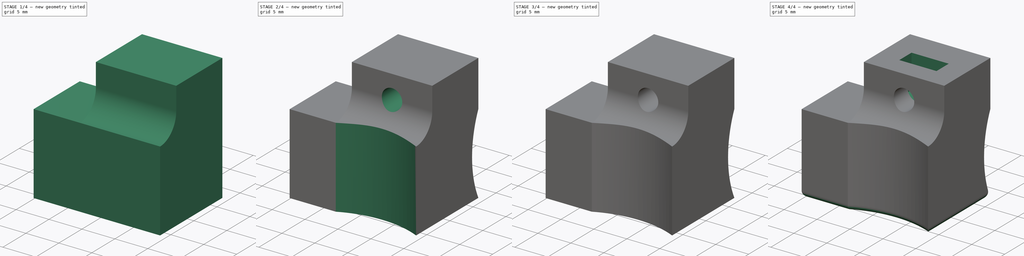
[diagram: build sequence overview — one tinted view per stage of 4, left to right]
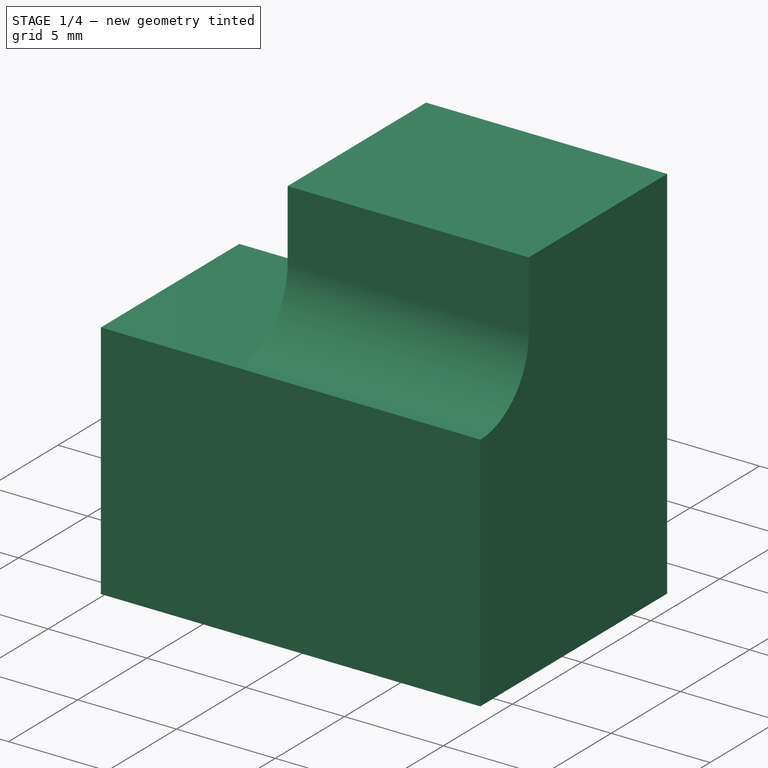
[diagram: stage 1 of 4 — iso view after this stage's code; geometry added in this stage tinted green]
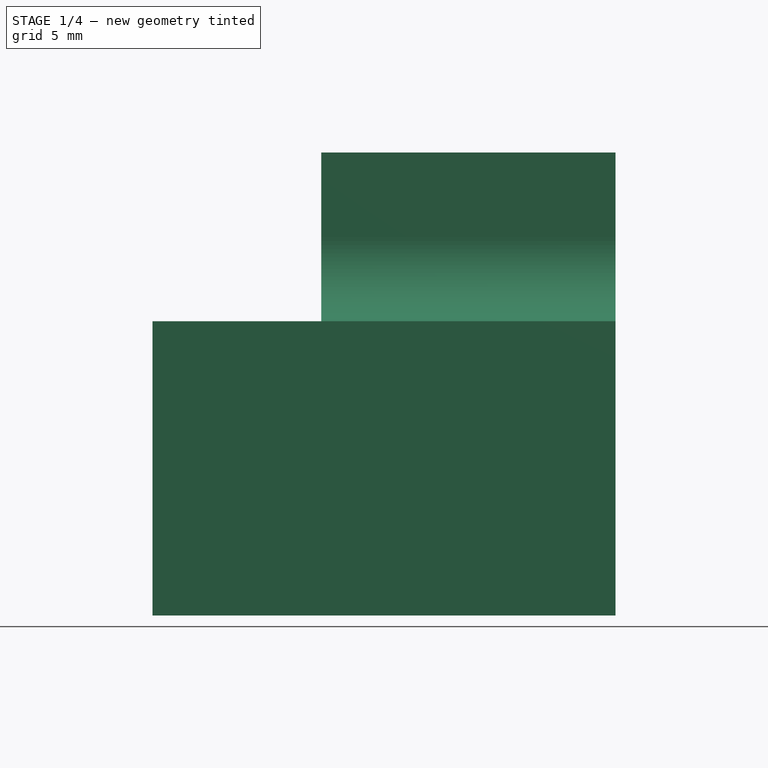
[diagram: stage 1 of 4 — front view after this stage's code; geometry added in this stage tinted green]
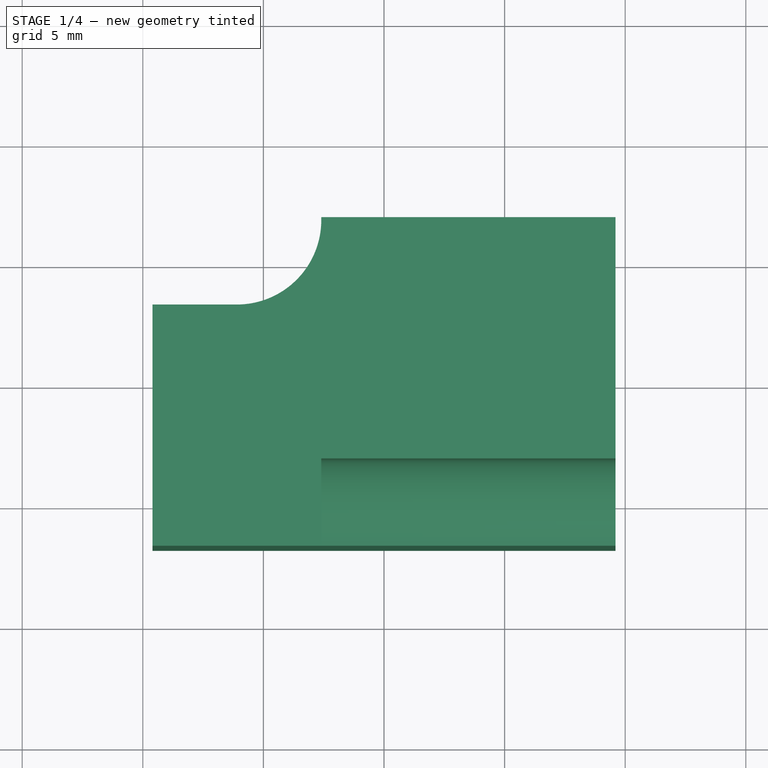
[diagram: stage 1 of 4 — top view after this stage's code; geometry added in this stage tinted green]
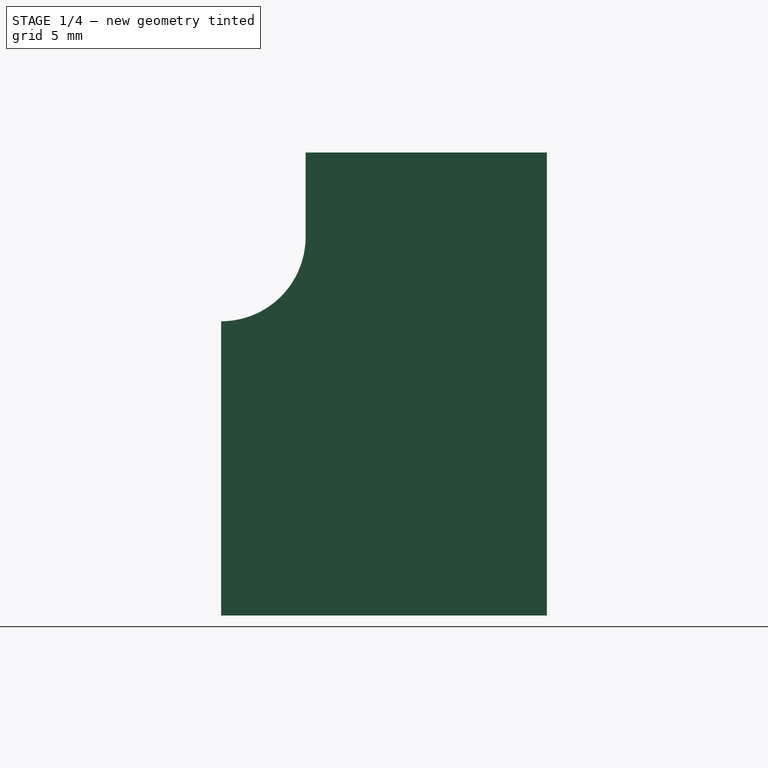
[diagram: stage 1 of 4 — right view after this stage's code; geometry added in this stage tinted green]
FCSTD DOCUMENT  (FreeCAD 0.16RUnknown)
Label: joint-base-s.012
License: All rights reserved
LicenseURL: http://en.wikipedia.org/wiki/All_rights_reserved
objects: Sketcher::SketchObject×9, PartDesign::Pocket×4, Part::Extrusion×3, PartDesign::Pad×2, Part::Cut×2, Part::Fillet×1
note: 27 computed .brp shape members not serialized (recipe doc carries the construction recipe); baked Part::Feature solids carry a one-line shape summary decoded from their .brp

FEATURE [Sketcher::SketchObject] Sketch
  sketch-geometry (10):
    g0: LineSegment StartX=-9.6 StartY=-6.75 StartZ=0 EndX=-9.6 EndY=3.25 EndZ=0
    g1: LineSegment StartX=-2.6 StartY=6.75 StartZ=0 EndX=9.6 EndY=6.75 EndZ=0
    g2: LineSegment StartX=9.6 StartY=6.75 StartZ=0 EndX=9.6 EndY=-6.75 EndZ=0
    g3: LineSegment StartX=9.6 StartY=-6.75 StartZ=0 EndX=-9.6 EndY=-6.75 EndZ=0
    g4: LineSegment [constr] StartX=-2.6 StartY=6.75 StartZ=0 EndX=-6.1 EndY=6.75 EndZ=0
    g5: LineSegment [constr] StartX=-6.1 StartY=6.75 StartZ=0 EndX=-6.1 EndY=3.25 EndZ=0
    g6: LineSegment StartX=-6.1 StartY=3.25 StartZ=0 EndX=-9.6 EndY=3.25 EndZ=0
    g7: ArcOfCircle CenterX=-6.1 CenterY=6.75 CenterZ=0 NormalX=0 NormalY=0 NormalZ=1 Radius=3.5 StartAngle=4.71239 EndAngle=6.28319
    g8: LineSegment [constr] StartX=-9.6 StartY=-6.75 StartZ=0 EndX=0 EndY=0 EndZ=0
    g9: LineSegment [constr] StartX=0 StartY=0 StartZ=0 EndX=9.6 EndY=6.75 EndZ=0
  constraints (27):
    c: Vertical(g0)
    c: Horizontal(g1)
    c: Coincident(g1,g2)
    c: Vertical(g2)
    c: Horizontal(g3)
    c: Coincident(g0,g3)
    c: DistanceX(g1,g1) = 12.2
    c: Horizontal(g4)
    c: Coincident(g4,g5)
    c: Vertical(g5)
    c: Coincident(g5,g6)
    c: Horizontal(g6)
    c: Coincident(g4,g7)
    c: Coincident(g1,g4)
    c: Coincident(g1,g7)
    c: Coincident(g5,g7)
    c: Coincident(g0,g6)
    c: DistanceX(g0,g1) = 7
    c: Equal(g4,g6)
    c: Coincident(g8,g9)
    c: Coincident(g0,g8)
    c: Coincident(g1,g9)
    c: Equal(g8,g9)
    c: Parallel(g8,g9)
    c: Coincident(g8,g-1)
    c: DistanceY(g0,g0) = 10
    c: Coincident(g3,g2)
FEATURE [Part::Extrusion] Extrude
  Base = -> Sketch
  Dir = (0,0,12.2)
  Solid = true
FEATURE [Sketcher::SketchObject] Sketch001
  ExternalGeometry = -> [Extrude]
  Placement = pos=(0,0,12.2) rot=(0,0,1;0rad)
  Support = -> Extrude [Face8]
  sketch-geometry (4):
    g0: LineSegment StartX=-2.6 StartY=6.75 StartZ=0 EndX=9.6 EndY=6.75 EndZ=0
    g1: LineSegment StartX=9.6 StartY=6.75 StartZ=0 EndX=9.6 EndY=-3.25 EndZ=0
    g2: LineSegment StartX=9.6 StartY=-3.25 StartZ=0 EndX=-2.6 EndY=-3.25 EndZ=0
    g3: LineSegment StartX=-2.6 StartY=-3.25 StartZ=0 EndX=-2.6 EndY=6.75 EndZ=0
  constraints (11):
    c: Coincident(g0,g1)
    c: Coincident(g1,g2)
    c: Coincident(g2,g3)
    c: Coincident(g3,g0)
    c: Horizontal(g0)
    c: Horizontal(g2)
    c: Vertical(g1)
    c: Vertical(g3)
    c: Coincident(g-4,g0)
    c: Coincident(g0,g-3)
    c: DistanceY(g-4,g1) = 3.5
FEATURE [PartDesign::Pad] Pad
  Length = 7
  Length2 = 100
  Sketch = -> Sketch001
  Type = 0
FEATURE [Sketcher::SketchObject] Sketch002
  ExternalGeometry = -> [Pad]
  Placement = pos=(9.6,0,0) rot=(0.57735,0.57735,0.57735;2.0944rad)
  Support = -> Pad [Face12]
  sketch-geometry (5):
    g0: ArcOfCircle CenterX=-6.75 CenterY=15.7 CenterZ=0 NormalX=0 NormalY=0 NormalZ=1 Radius=3.5 StartAngle=4.71239 EndAngle=6.28319
    g1: LineSegment [constr] StartX=-6.75 StartY=12.2 StartZ=0 EndX=-6.75 EndY=15.7 EndZ=0
    g2: LineSegment [constr] StartX=-6.75 StartY=15.7 StartZ=0 EndX=-3.25 EndY=15.7 EndZ=0
    g3: LineSegment StartX=-6.75 StartY=12.2 StartZ=0 EndX=-3.25 EndY=12.2 EndZ=0
    g4: LineSegment StartX=-3.25 StartY=12.2 StartZ=0 EndX=-3.25 EndY=15.7 EndZ=0
  constraints (13):
    c: Vertical(g1)
    c: Coincident(g1,g2)
    c: Horizontal(g2)
    c: Coincident(g0,g1)
    c: Coincident(g0,g1)
    c: Coincident(g0,g-3)
    c: Coincident(g0,g2)
    c: PointOnObject(g0,g-4)
    c: Horizontal(g3)
    c: Coincident(g3,g4)
    c: Vertical(g4)
    c: Coincident(g0,g4)
    c: Coincident(g0,g3)
FEATURE [PartDesign::Pad] Pad001
  Length = 10
  Length2 = 100
  Sketch = -> Sketch002
  Type = 3
  UpToFace = -> Pad [Face10]
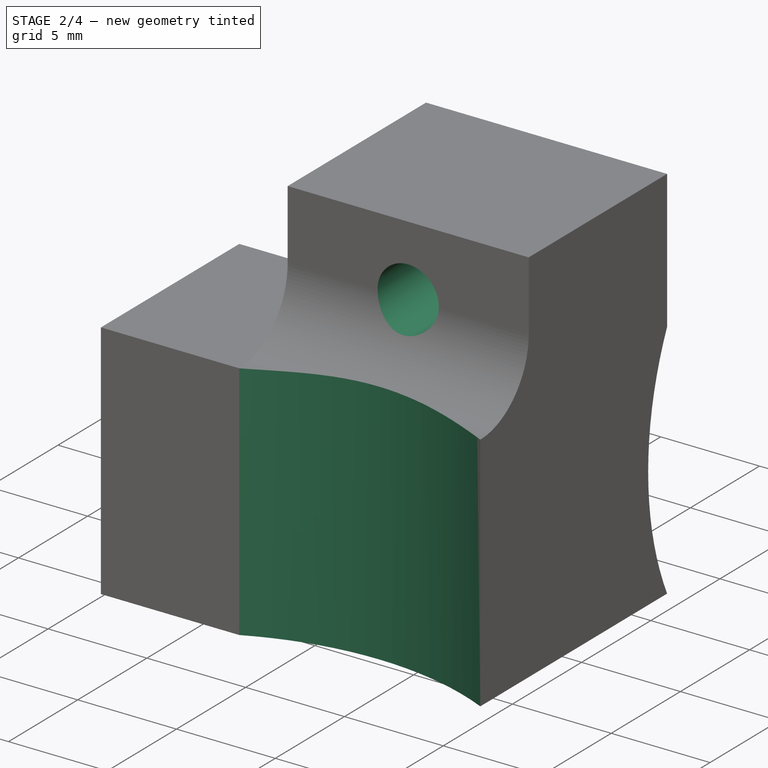
[diagram: stage 2 of 4 — iso view after this stage's code; geometry added in this stage tinted green]
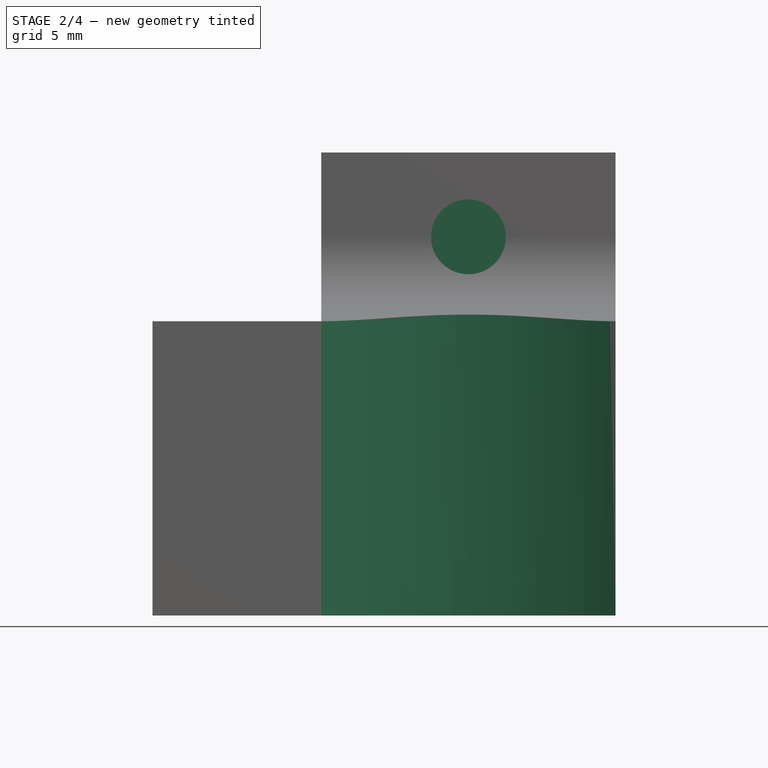
[diagram: stage 2 of 4 — front view after this stage's code; geometry added in this stage tinted green]
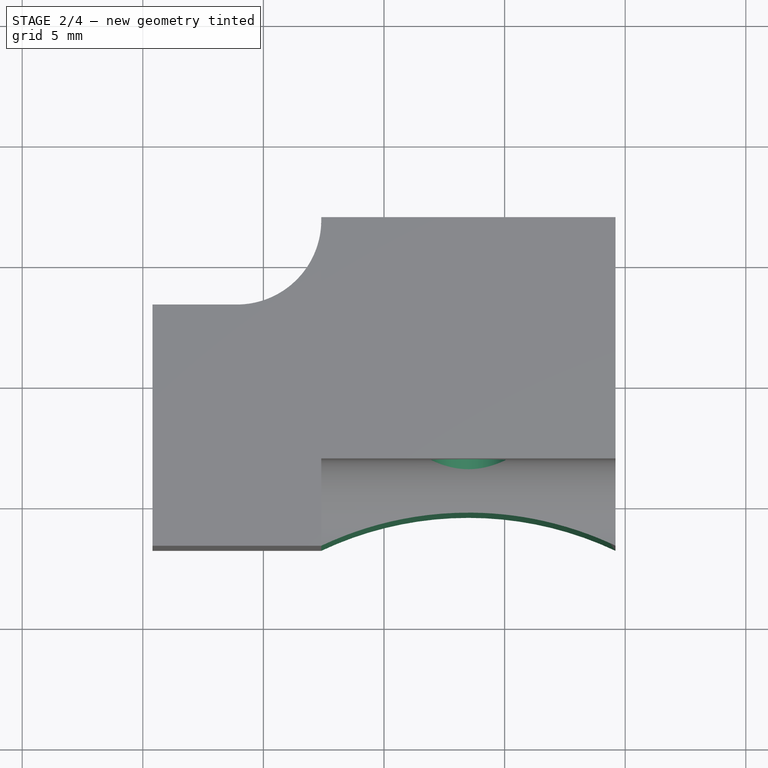
[diagram: stage 2 of 4 — top view after this stage's code; geometry added in this stage tinted green]
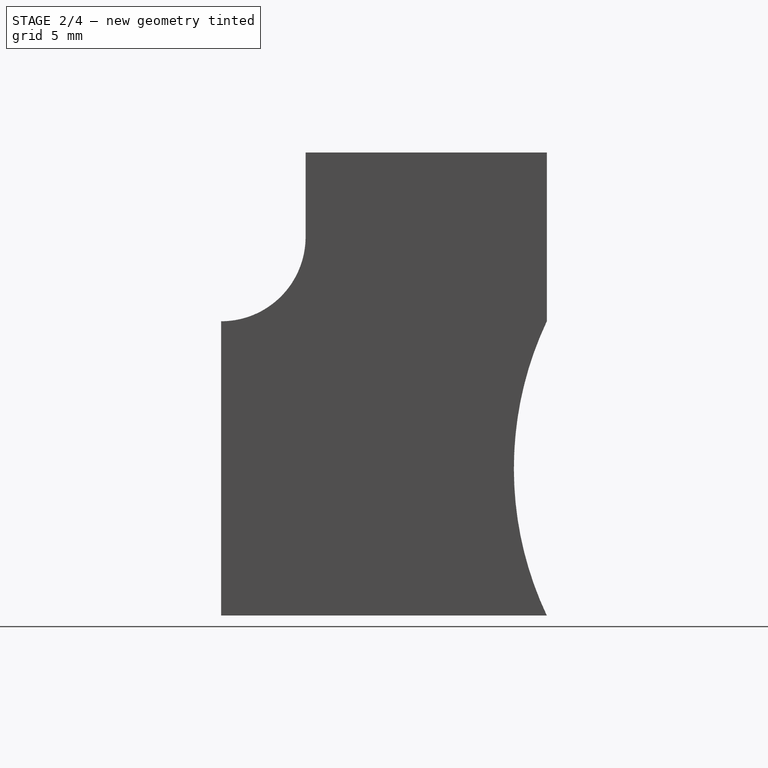
[diagram: stage 2 of 4 — right view after this stage's code; geometry added in this stage tinted green]
FEATURE [Sketcher::SketchObject] Sketch003
  ExternalGeometry = -> [Pad001]
  Placement = pos=(9.6,0,0) rot=(0.57735,0.57735,0.57735;2.0944rad)
  Support = -> Pad001 [Face8]
  sketch-geometry (2):
    g0: LineSegment StartX=6.75 StartY=12.2 StartZ=0 EndX=6.75 EndY=0 EndZ=0
    g1: ArcOfCircle CenterX=19.6837 CenterY=6.1 CenterZ=0 NormalX=0 NormalY=0 NormalZ=1 Radius=14.3 StartAngle=2.70089 EndAngle=3.58229
  constraints (6):
    c: Vertical(g0)
    c: Coincident(g0,g1)
    c: Coincident(g0,g-3)
    c: Coincident(g0,g1)
    c: Coincident(g0,g-3)
    c: Radius(g1) = 14.3
FEATURE [PartDesign::Pocket] Pocket
  Length = 5
  Sketch = -> Sketch003
  Type = 1
FEATURE [Sketcher::SketchObject] Sketch004
  ExternalGeometry = -> [Pocket]
  Placement = pos=(0,0,0) rot=(1,0,0;3.14159rad)
  Support = -> Pocket [Face4]
  sketch-geometry (3):
    g0: LineSegment StartX=-2.6 StartY=6.75 StartZ=0 EndX=9.6 EndY=6.75 EndZ=0
    g1: ArcOfCircle CenterX=3.5 CenterY=19.6837 CenterZ=0 NormalX=0 NormalY=0 NormalZ=1 Radius=14.3 StartAngle=4.27169 EndAngle=5.15309
    g2: LineSegment [constr] StartX=-2.6 StartY=-6.75 StartZ=0 EndX=-2.6 EndY=6.75 EndZ=0
  constraints (9):
    c: Horizontal(g0)
    c: Coincident(g0,g1)
    c: Coincident(g0,g-3)
    c: Coincident(g0,g1)
    c: Radius(g1) = 14.3
    c: Vertical(g2)
    c: Coincident(g2,g-4)
    c: PointOnObject(g2,g-3)
    c: Coincident(g0,g2)
FEATURE [PartDesign::Pocket] Pocket001
  Length = 5
  Sketch = -> Sketch004
  Type = 1
FEATURE [Sketcher::SketchObject] Sketch005
  ExternalGeometry = -> [Pocket001]
  Placement = pos=(0,-3.25,0) rot=(1,0,0;1.5708rad)
  Support = -> Pocket001 [Face16]
  sketch-geometry (3):
    g0: LineSegment [constr] StartX=-2.6 StartY=15.7 StartZ=0 EndX=3.5 EndY=15.7 EndZ=0
    g1: LineSegment [constr] StartX=3.5 StartY=15.7 StartZ=0 EndX=9.6 EndY=15.7 EndZ=0
    g2: Circle CenterX=3.5 CenterY=15.7 CenterZ=0 NormalX=0 NormalY=0 NormalZ=1 Radius=1.55
  constraints (8):
    c: Horizontal(g0)
    c: Coincident(g0,g1)
    c: Horizontal(g1)
    c: Coincident(g0,g2)
    c: Equal(g0,g1)
    c: Coincident(g0,g-3)
    c: Coincident(g1,g-3)
    c: Radius(g2) = 1.55
FEATURE [PartDesign::Pocket] Pocket002
  Length = 14
  Midplane = true
  Sketch = -> Sketch005
  Type = 0
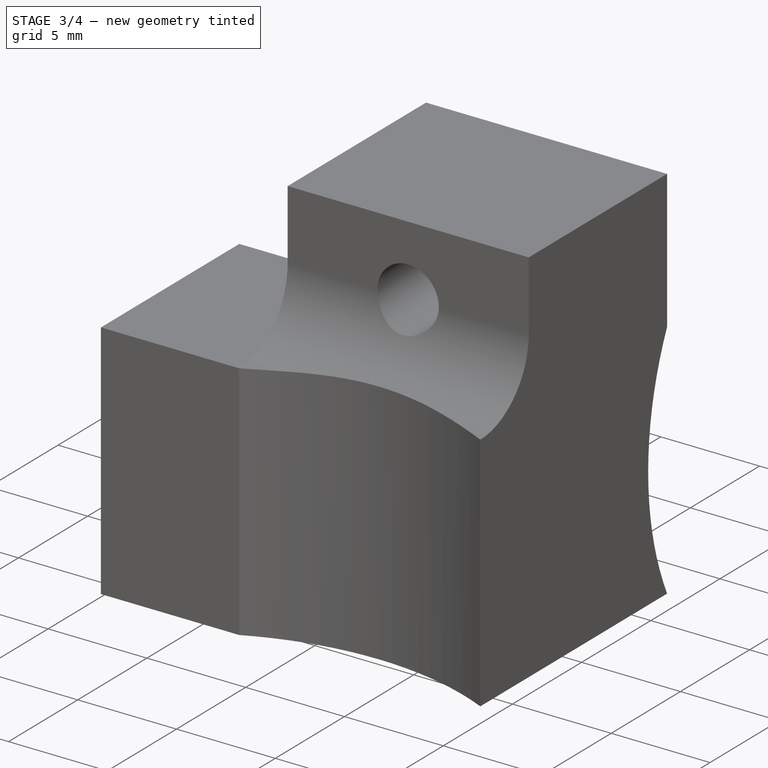
[diagram: stage 3 of 4 — iso view after this stage's code; geometry added in this stage tinted green]
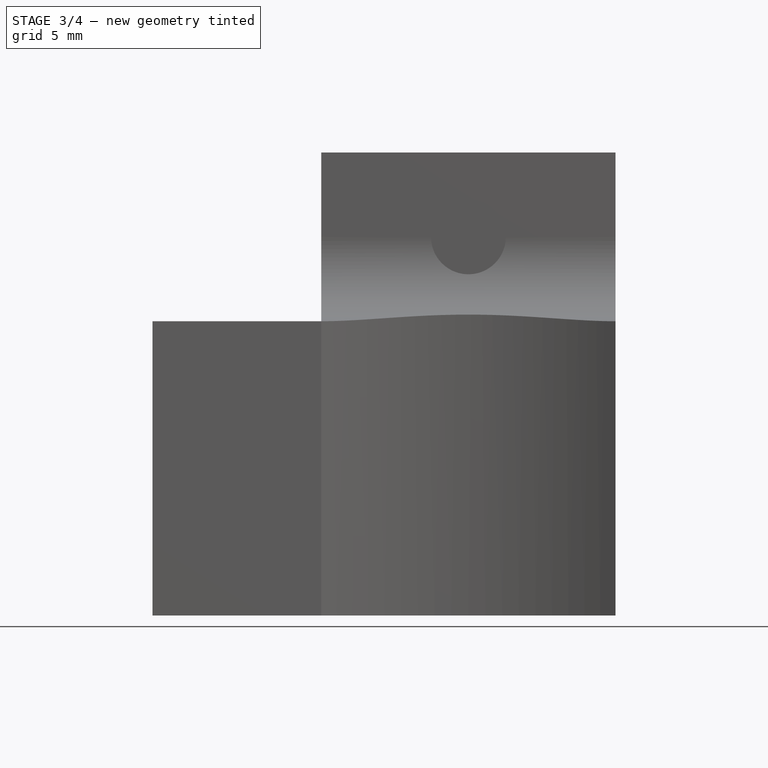
[diagram: stage 3 of 4 — front view after this stage's code; geometry added in this stage tinted green]
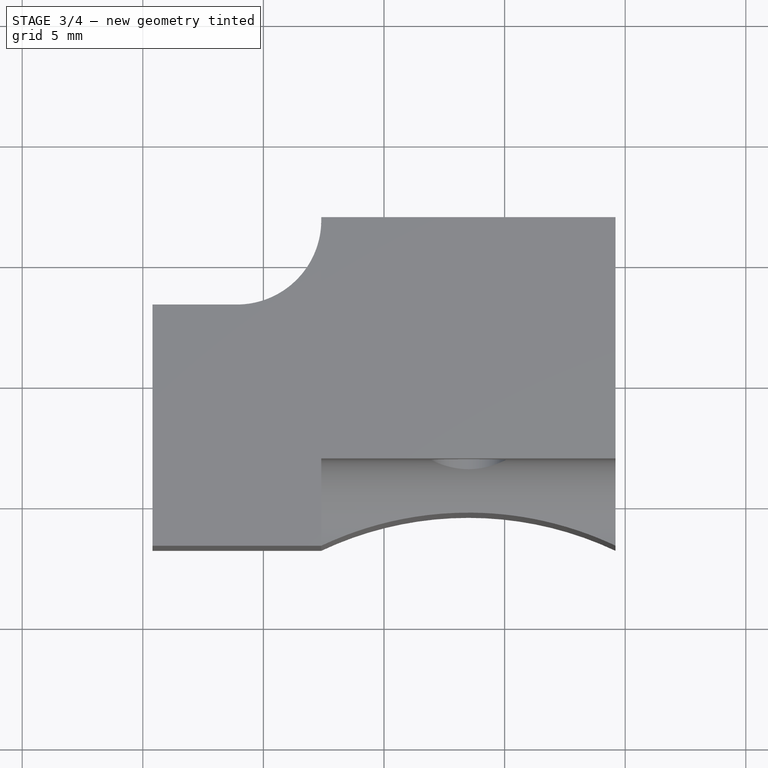
[diagram: stage 3 of 4 — top view after this stage's code; geometry added in this stage tinted green]
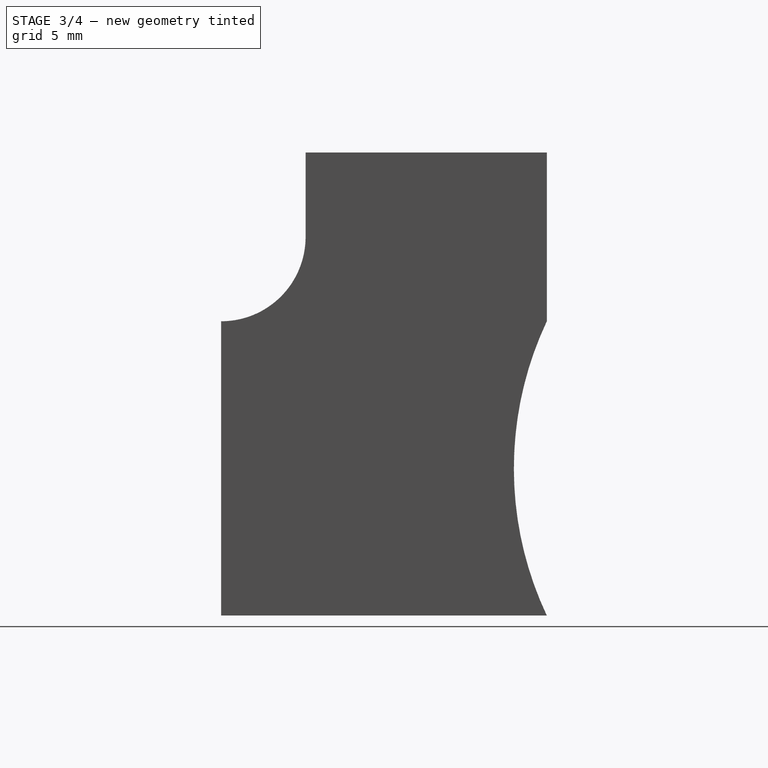
[diagram: stage 3 of 4 — right view after this stage's code; geometry added in this stage tinted green]
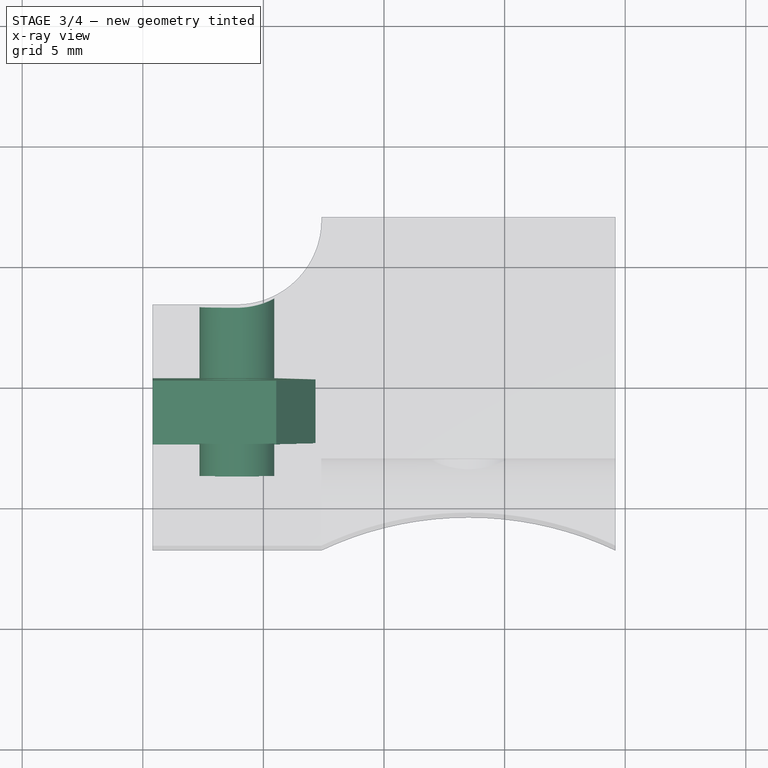
[diagram: stage 3 of 4 — x-ray composite at the top view; earlier geometry ghosted, this stage's added geometry solid]
FEATURE [Sketcher::SketchObject] Sketch006
  ExternalGeometry = -> [Pocket002]
  Placement = pos=(0,3.25,0) rot=(0,0.707107,0.707107;3.14159rad)
  Support = -> Pocket002 [Face1]
  sketch-geometry (3):
    g0: LineSegment [constr] StartX=6.1 StartY=12.2 StartZ=0 EndX=6.1 EndY=6.1 EndZ=0
    g1: LineSegment [constr] StartX=6.1 StartY=6.1 StartZ=0 EndX=6.1 EndY=0 EndZ=0
    g2: Circle CenterX=6.1 CenterY=6.1 CenterZ=0 NormalX=0 NormalY=0 NormalZ=1 Radius=1.55
  constraints (8):
    c: Vertical(g0)
    c: Coincident(g0,g1)
    c: Vertical(g1)
    c: Equal(g0,g1)
    c: Coincident(g0,g2)
    c: Radius(g2) = 1.55
    c: Coincident(g0,g-3)
    c: Coincident(g1,g-3)
FEATURE [PartDesign::Pocket] Pocket003
  Length = 14
  Midplane = true
  Sketch = -> Sketch006
  Type = 0
FEATURE [Sketcher::SketchObject] Sketch007
  ExternalGeometry = -> [Pocket003]
  Placement = pos=(0,3.25,0) rot=(0,0.707107,0.707107;3.14159rad)
  Support = -> Pocket003 [Face1]
  sketch-geometry (6):
    g0: LineSegment [constr] StartX=6.1 StartY=6.1 StartZ=0 EndX=2.83797 EndY=6.1 EndZ=0
    g1: LineSegment StartX=2.83797 StartY=6.1 StartZ=0 EndX=4.46899 EndY=8.925 EndZ=0
    g2: LineSegment StartX=4.46899 StartY=8.925 StartZ=0 EndX=9.6 EndY=8.925 EndZ=0
    g3: LineSegment StartX=9.6 StartY=8.925 StartZ=0 EndX=9.6 EndY=3.275 EndZ=0
    g4: LineSegment StartX=9.6 StartY=3.275 StartZ=0 EndX=4.46899 EndY=3.275 EndZ=0
    g5: LineSegment StartX=4.46899 StartY=3.275 StartZ=0 EndX=2.83797 EndY=6.1 EndZ=0
  constraints (17):
    c: Horizontal(g0)
    c: Coincident(g0,g1)
    c: Coincident(g1,g2)
    c: Horizontal(g2)
    c: Coincident(g2,g3)
    c: Vertical(g3)
    c: Coincident(g3,g4)
    c: Horizontal(g4)
    c: Coincident(g4,g5)
    c: Coincident(g0,g5)
    c: Coincident(g0,g-3)
    c: Equal(g2,g4)
    c: DistanceY(g3,g3) = 5.65
    c: Angle(g5,g1) = 2.0944
    c: Equal(g5,g0)
    c: Equal(g0,g1)
    c: PointOnObject(g2,g-4)
FEATURE [Part::Extrusion] Extrude001
  Base = -> Sketch007
  Dir = (0,-2.65,0)
  Placement = pos=(0,-3,0) rot=(0,0,1;0rad)
  Solid = true
FEATURE [Part::Cut] Cut
  Base = -> Pocket003
  Tool = -> Extrude001
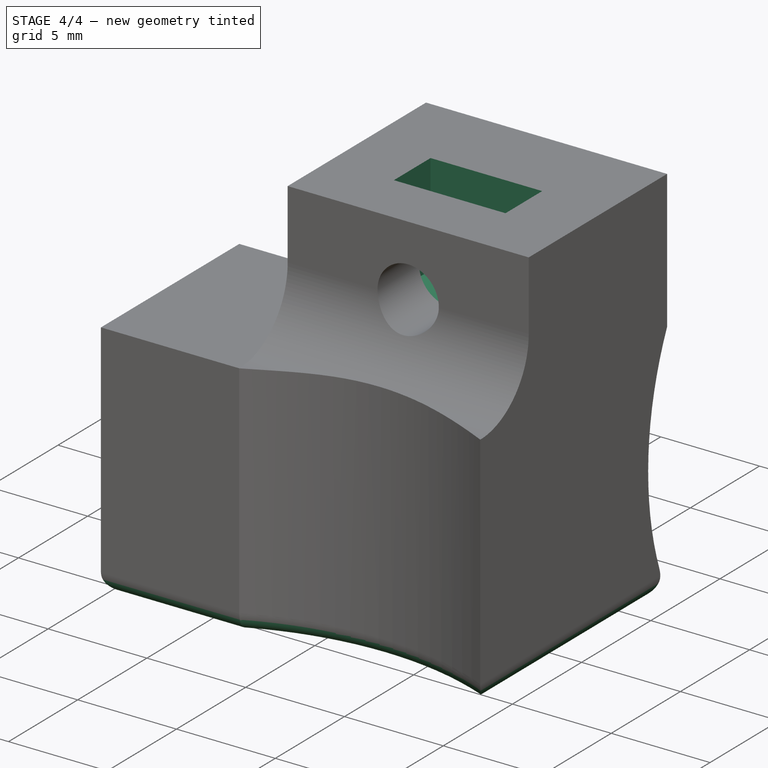
[diagram: stage 4 of 4 — iso view after this stage's code; geometry added in this stage tinted green]
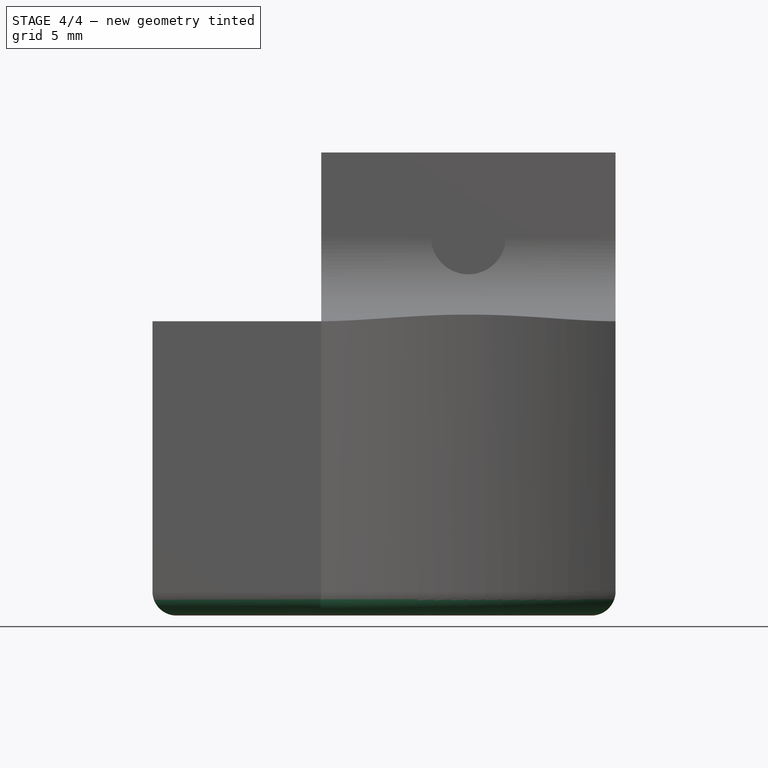
[diagram: stage 4 of 4 — front view after this stage's code; geometry added in this stage tinted green]
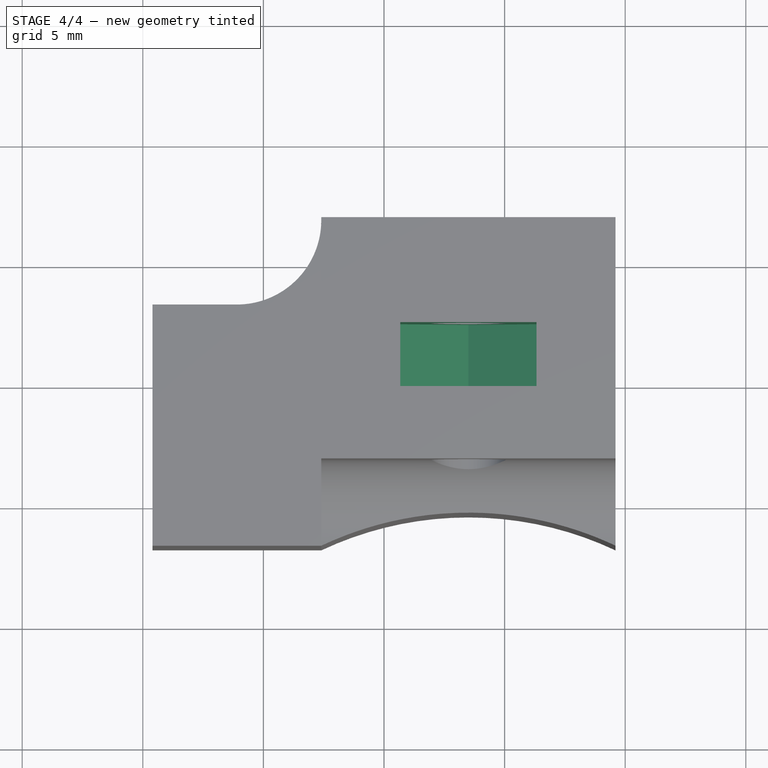
[diagram: stage 4 of 4 — top view after this stage's code; geometry added in this stage tinted green]
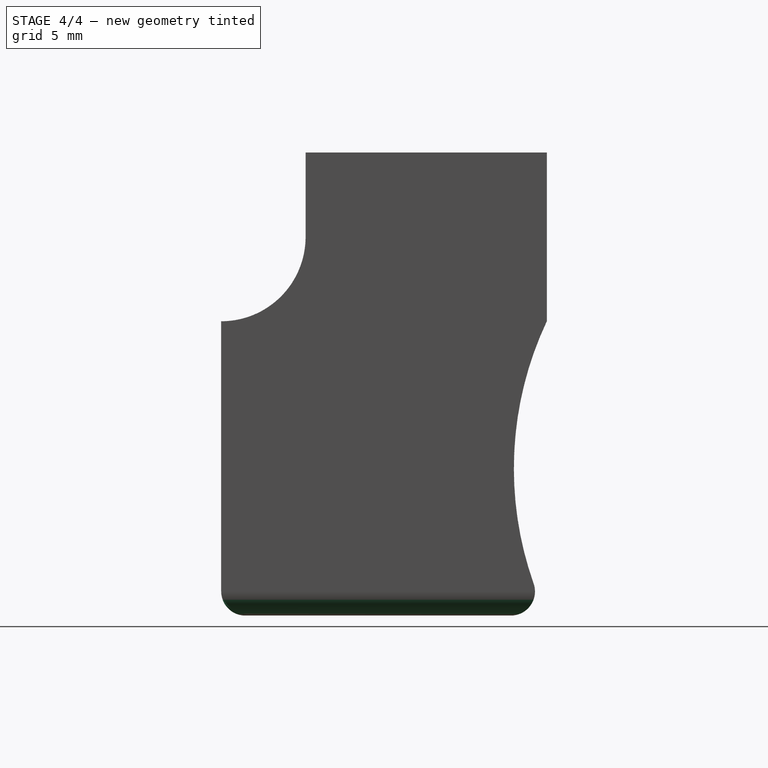
[diagram: stage 4 of 4 — right view after this stage's code; geometry added in this stage tinted green]
FEATURE [Sketcher::SketchObject] Sketch008
  ExternalGeometry = -> [Cut]
  Placement = pos=(0,-3.25,0) rot=(1,0,0;1.5708rad)
  Support = -> Cut [Face24]
  sketch-geometry (6):
    g0: LineSegment [constr] StartX=3.5 StartY=15.7 StartZ=0 EndX=3.5 EndY=12.438 EndZ=0
    g1: LineSegment StartX=3.5 StartY=12.438 StartZ=0 EndX=6.325 EndY=14.069 EndZ=0
    g2: LineSegment StartX=6.325 StartY=14.069 StartZ=0 EndX=6.325 EndY=19.2 EndZ=0
    g3: LineSegment StartX=6.325 StartY=19.2 StartZ=0 EndX=0.675 EndY=19.2 EndZ=0
    g4: LineSegment StartX=0.675 StartY=19.2 StartZ=0 EndX=0.675 EndY=14.069 EndZ=0
    g5: LineSegment StartX=0.675 StartY=14.069 StartZ=0 EndX=3.5 EndY=12.438 EndZ=0
  constraints (17):
    c: Vertical(g0)
    c: Coincident(g0,g1)
    c: Coincident(g1,g2)
    c: Vertical(g2)
    c: Coincident(g2,g3)
    c: Horizontal(g3)
    c: Coincident(g3,g4)
    c: Vertical(g4)
    c: Coincident(g4,g5)
    c: Coincident(g0,g5)
    c: Coincident(g0,g-3)
    c: Angle(g1,g5) = 2.0944
    c: Equal(g4,g2)
    c: Equal(g5,g0)
    c: Equal(g0,g1)
    c: DistanceX(g3,g3) = 5.65
    c: PointOnObject(g3,g-4)
FEATURE [Part::Extrusion] Extrude002
  Base = -> Sketch008
  Dir = (0,2.65,0)
  Placement = pos=(0,3,0) rot=(0,0,1;0rad)
  Solid = true
FEATURE [Part::Cut] Cut001
  Base = -> Cut
  Tool = -> Extrude002
FEATURE [Part::Fillet] Fillet
  Base = -> Cut001
  Edges = 7 edges r=1: [Edge1,Edge8,Edge9,Edge10,Edge11,Edge12,Edge13]
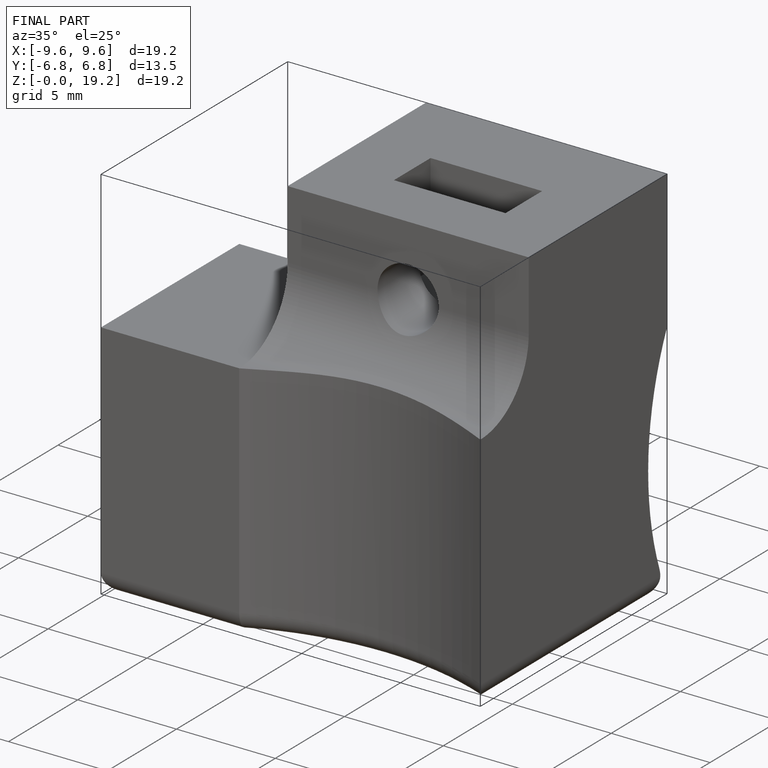
[diagram: finished part — iso view with bounding-box wireframe]
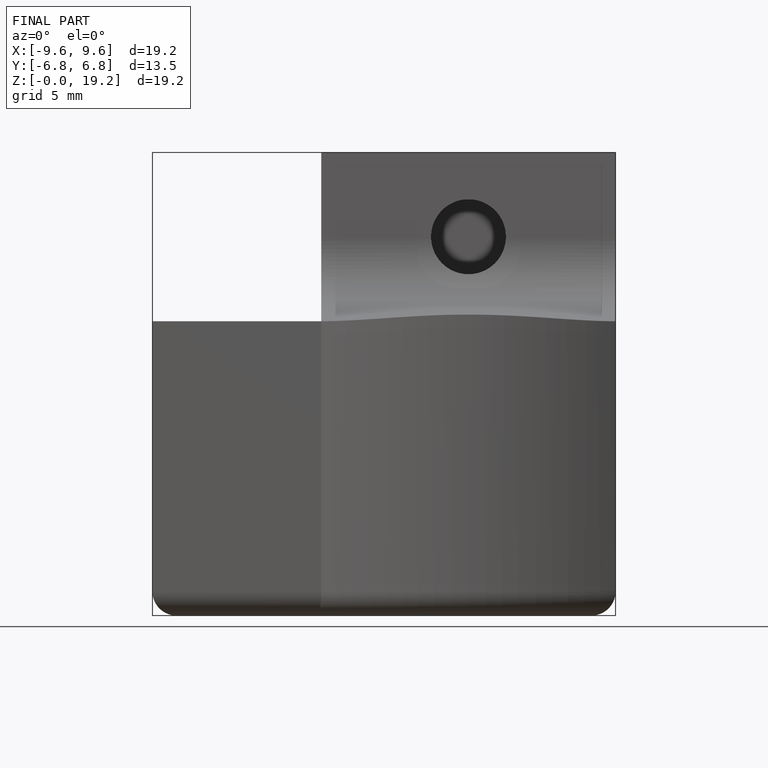
[diagram: finished part — front view with bounding-box wireframe]
